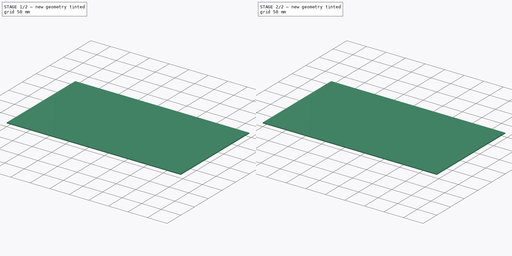
[diagram: build sequence overview — one tinted view per stage of 2, left to right]
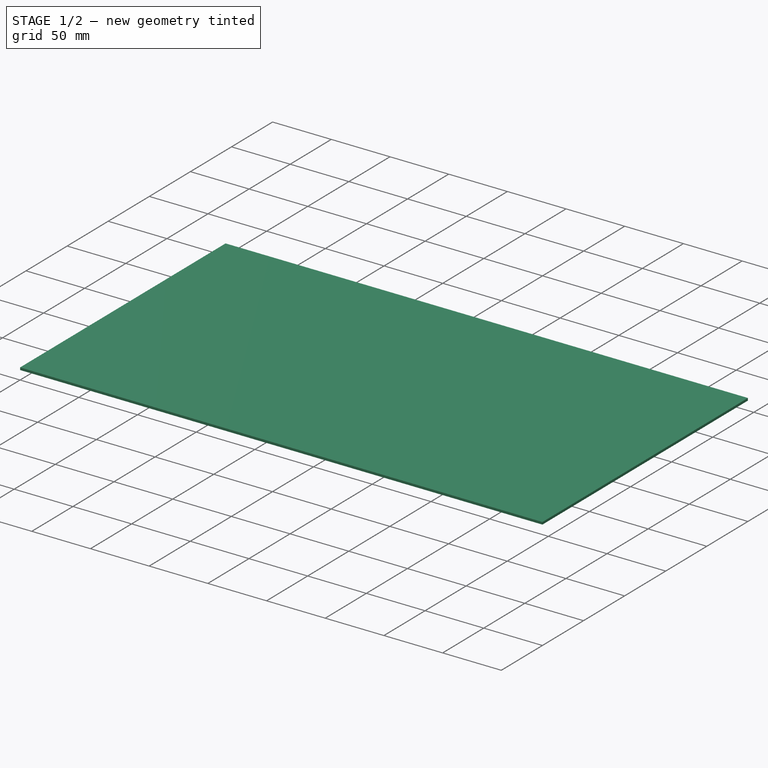
[diagram: stage 1 of 2 — iso view after this stage's code; geometry added in this stage tinted green]
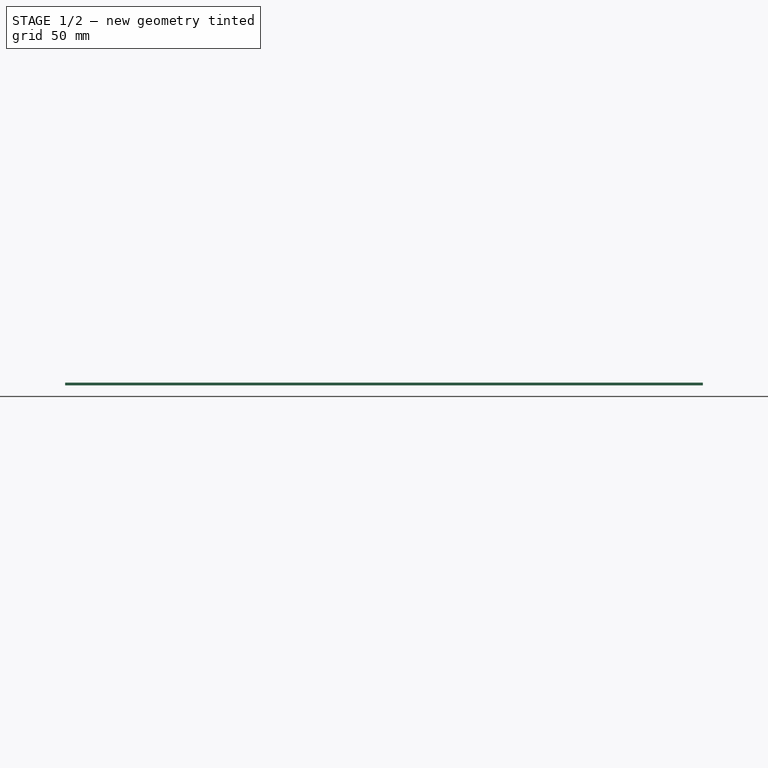
[diagram: stage 1 of 2 — front view after this stage's code; geometry added in this stage tinted green]
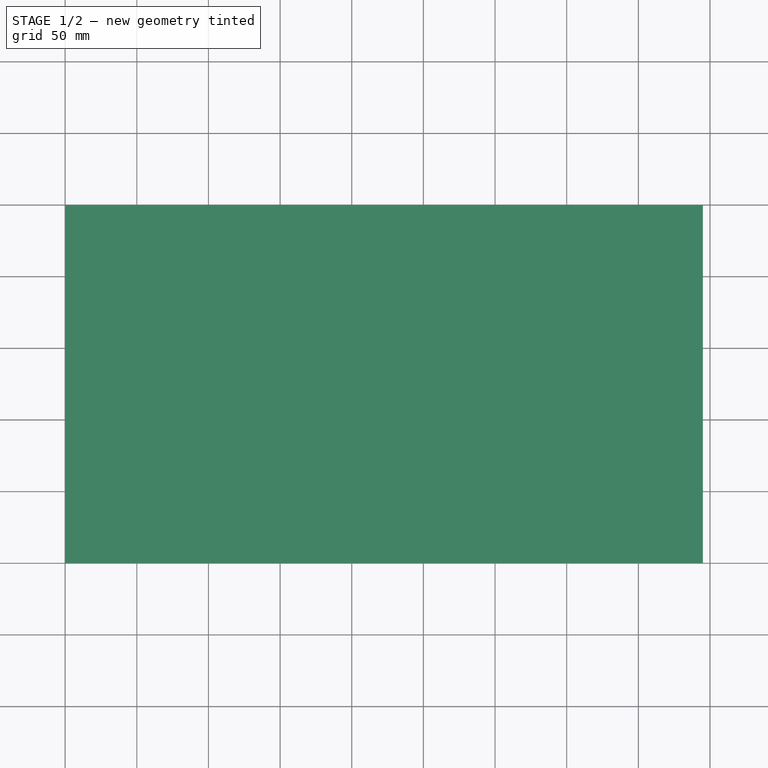
[diagram: stage 1 of 2 — top view after this stage's code; geometry added in this stage tinted green]
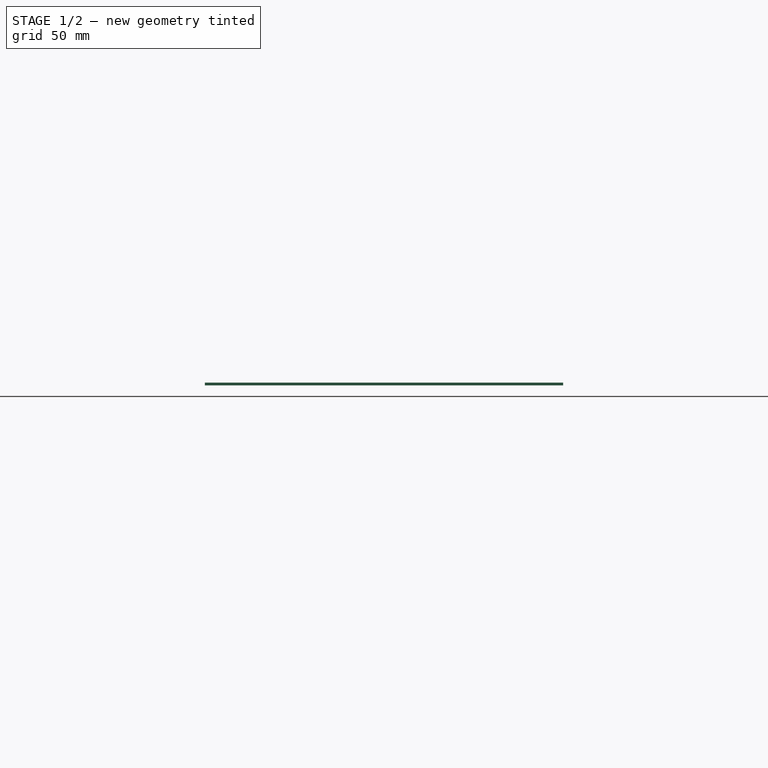
[diagram: stage 1 of 2 — right view after this stage's code; geometry added in this stage tinted green]
FCSTD DOCUMENT  (FreeCAD 1.0R39319 (Git))
Label: top_plate
License: All rights reserved
LicenseURL: https://en.wikipedia.org/wiki/All_rights_reserved
objects: Sketcher::SketchObject×2, PartDesign::Pad×1, PartDesign::Hole×1, PartDesign::Body×1
note: 11 computed .brp shape members not serialized (recipe doc carries the construction recipe); baked Part::Feature solids carry a one-line shape summary decoded from their .brp

FEATURE [Sketcher::SketchObject] Sketch
  ArcFitTolerance = 1e-06
  AttachmentSupport = -> [XY_Plane]
  FullyConstrained = true
  MakeInternals = false
  MapMode = 5
  sketch-geometry (4):
    g0: LineSegment StartX=0 StartY=0 StartZ=0 EndX=0 EndY=-250 EndZ=0
    g1: LineSegment StartX=0 StartY=-250 StartZ=0 EndX=445 EndY=-250 EndZ=0
    g2: LineSegment StartX=445 StartY=-250 StartZ=0 EndX=445 EndY=0 EndZ=0
    g3: LineSegment StartX=445 StartY=0 StartZ=0 EndX=0 EndY=0 EndZ=0
  constraints (11):
    c: Coincident(g0,g1)
    c: Coincident(g1,g2)
    c: Coincident(g2,g3)
    c: Coincident(g3,g0)
    c: Vertical(g0)
    c: Vertical(g2)
    c: Horizontal(g1)
    c: Horizontal(g3)
    c: Distance(g0,g2) = 445
    c: Distance(g1,g3) = 250
    c: Coincident(g0,g-1)
FEATURE [PartDesign::Pad] Pad
  Direction = (0,0,1)
  Length = 2
  Length2 = 10
  Profile = -> Sketch
  ReferenceAxis = -> Sketch [N_Axis]
  Refine = true
  Suppressed = false
  Type = 0
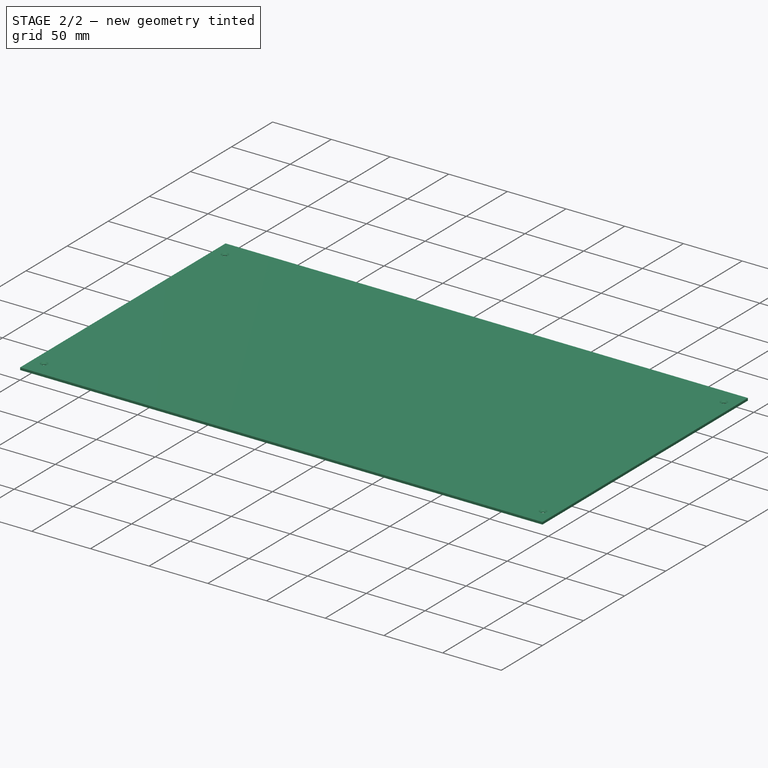
[diagram: stage 2 of 2 — iso view after this stage's code; geometry added in this stage tinted green]
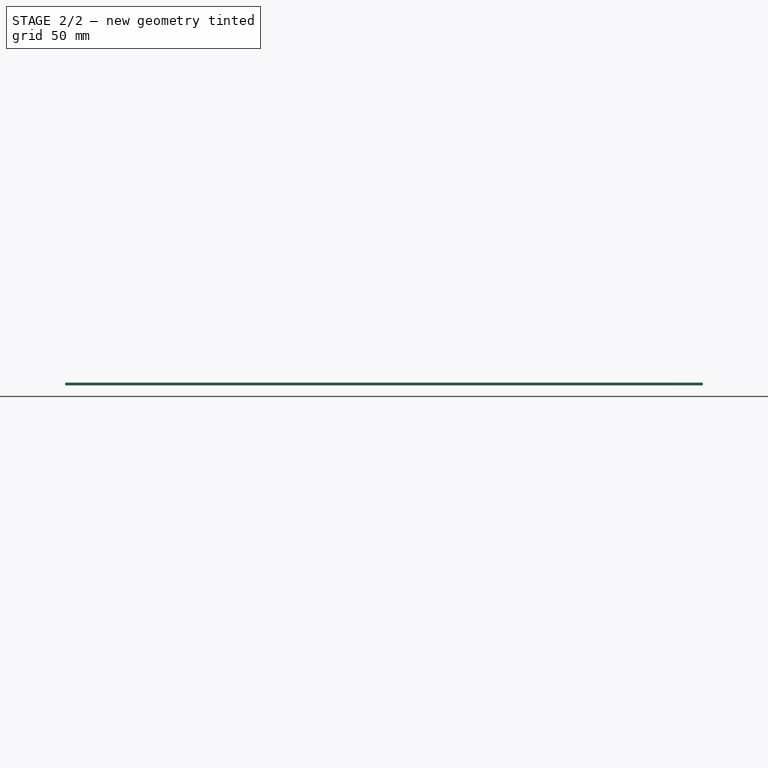
[diagram: stage 2 of 2 — front view after this stage's code; geometry added in this stage tinted green]
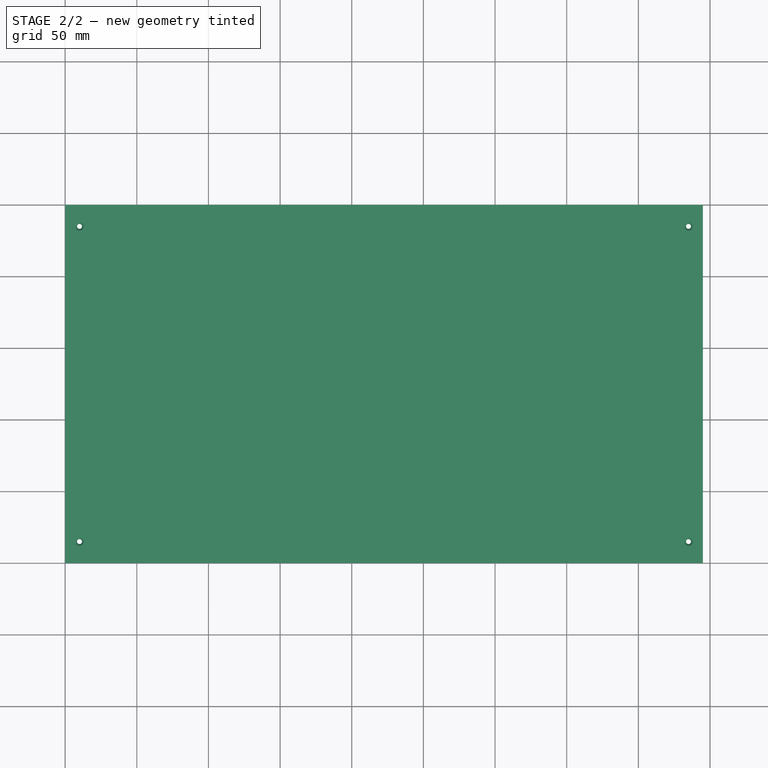
[diagram: stage 2 of 2 — top view after this stage's code; geometry added in this stage tinted green]
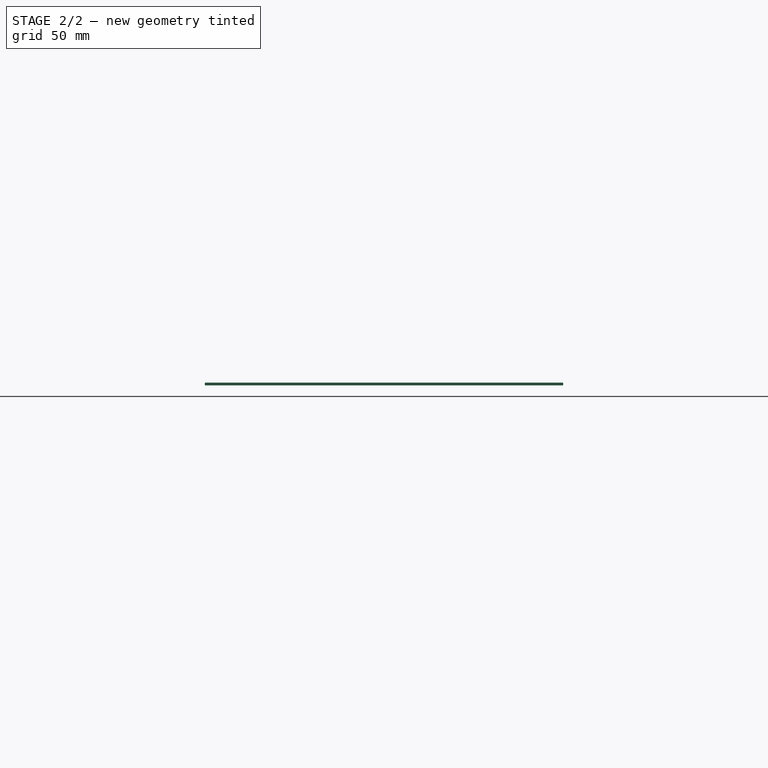
[diagram: stage 2 of 2 — right view after this stage's code; geometry added in this stage tinted green]
FEATURE [Sketcher::SketchObject] Sketch001
  ArcFitTolerance = 1e-06
  AttachmentOffset = pos=(0,0,1.5) rot=(0,0,1;0rad)
  AttachmentSupport = -> [Pad]
  ExternalGeometry = -> [Pad]
  FullyConstrained = true
  MakeInternals = false
  MapMode = 5
  Placement = pos=(0,0,3.5) rot=(0,0,1;0rad)
  sketch-geometry (12):
    g0: Circle CenterX=10 CenterY=-15 CenterZ=0 NormalX=0 NormalY=0 NormalZ=1 AngleXU=0 Radius=1.5
    g1: LineSegment [constr] StartX=10 StartY=-15 StartZ=0 EndX=0 EndY=-15 EndZ=0
    g2: LineSegment [constr] StartX=10 StartY=-15 StartZ=0 EndX=10 EndY=0 EndZ=0
    g3: Circle CenterX=10 CenterY=-235 CenterZ=0 NormalX=0 NormalY=0 NormalZ=1 AngleXU=0 Radius=1.5
    g4: LineSegment [constr] StartX=10 StartY=-235 StartZ=0 EndX=10 EndY=-15 EndZ=0
    g5: LineSegment [constr] StartX=10 StartY=-235 StartZ=0 EndX=10 EndY=-250 EndZ=0
    g6: LineSegment [constr] StartX=10 StartY=-15 StartZ=0 EndX=435 EndY=-15 EndZ=0
    g7: LineSegment [constr] StartX=435 StartY=-15 StartZ=0 EndX=445 EndY=-15 EndZ=0
    g8: LineSegment [constr] StartX=10 StartY=-235 StartZ=0 EndX=435 EndY=-235 EndZ=0
    g9: LineSegment [constr] StartX=435 StartY=-235 StartZ=0 EndX=445 EndY=-235 EndZ=0
    g10: Circle CenterX=435 CenterY=-235 CenterZ=0 NormalX=0 NormalY=0 NormalZ=1 AngleXU=0 Radius=1.5
    g11: Circle CenterX=435 CenterY=-15 CenterZ=0 NormalX=0 NormalY=0 NormalZ=1 AngleXU=0 Radius=1.5
  constraints (33):
    c: Diameter(g0) = 3
    c: Coincident(g1,g0)
    c: PointOnObject(g1,g-2)
    c: Horizontal(g1)
    c: DistanceX(g1,g1) = 10
    c: Distance(g2) = 15
    c: Coincident(g2,g0)
    c: Vertical(g2)
    c: PointOnObject(g2,g-1)
    c: Equal(g3,g0)
    c: Coincident(g4,g3)
    c: Coincident(g4,g0)
    c: Vertical(g4)
    c: Coincident(g5,g3)
    c: PointOnObject(g5,g-3)
    c: Vertical(g5)
    c: Equal(g5,g2)
    c: Coincident(g6,g0)
    c: Horizontal(g6)
    c: Coincident(g7,g6)
    c: PointOnObject(g7,g-4)
    c: Horizontal(g7)
    c: Equal(g7,g1)
    c: Coincident(g8,g3)
    c: Horizontal(g8)
    c: Coincident(g9,g8)
    c: PointOnObject(g9,g-4)
    c: Horizontal(g9)
    c: Equal(g9,g7)
    c: Coincident(g10,g8)
    c: Coincident(g11,g6)
    c: Equal(g11,g0)
    c: Equal(g0,g10)
FEATURE [PartDesign::Hole] Hole
  BaseFeature = -> Pad
  CustomThreadClearance = 0
  Depth = 1031.05
  DepthType = 1
  Diameter = 3.4
  DrillForDepth = false
  DrillPoint = 1
  DrillPointAngle = 118
  HoleCutCountersinkAngle = 90
  HoleCutCustomValues = false
  HoleCutDepth = 1
  HoleCutDiameter = 7
  HoleCutType = 3
  ModelThread = false
  Profile = -> Sketch001
  Refine = true
  Suppressed = false
  Tapered = false
  TaperedAngle = 90
  ThreadClass = 0
  ThreadDepth = 1031.05
  ThreadDepthType = 0
  ThreadDirection = 0
  ThreadFit = 0
  ThreadSize = 9
  ThreadType = 1
  Threaded = false
  UseCustomThreadClearance = false
FEATURE [PartDesign::Body] Body  label="top_plate"
  AllowCompound = false
  Group = -> [Sketch,Pad,Sketch001,Hole]
  Origin = -> Origin
  Tip = -> Hole
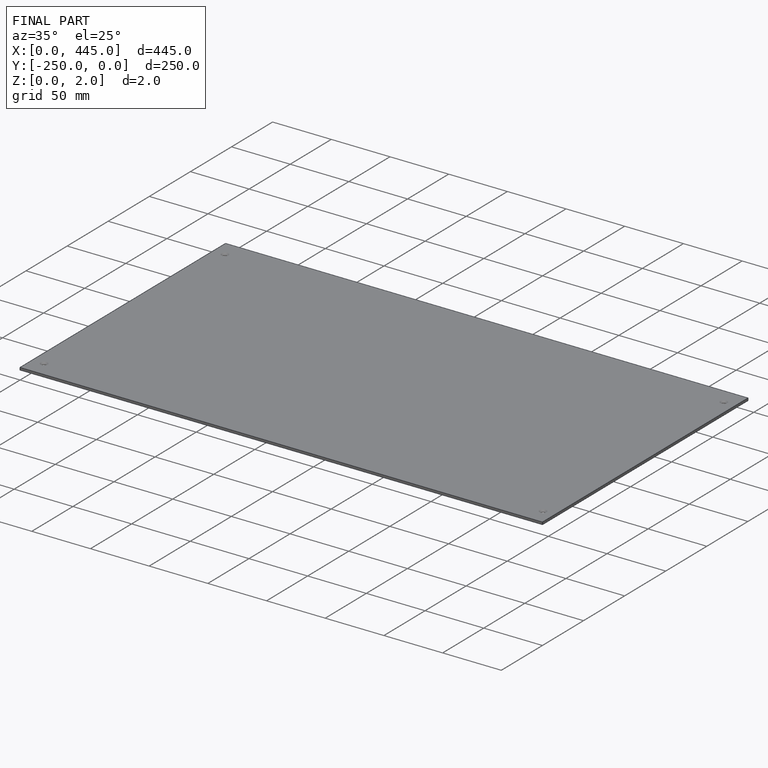
[diagram: finished part — iso view with bounding-box wireframe]
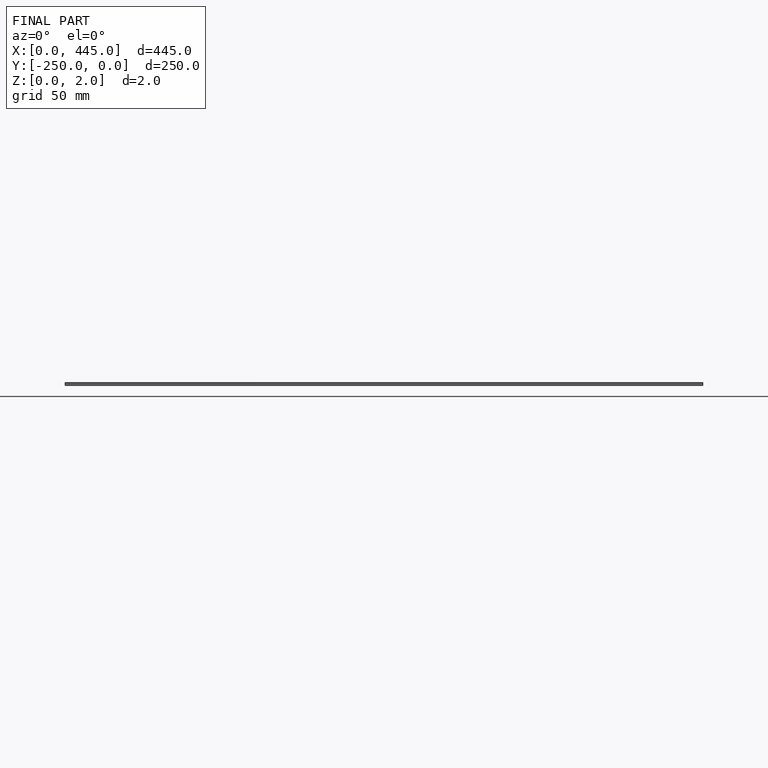
[diagram: finished part — front view with bounding-box wireframe]
